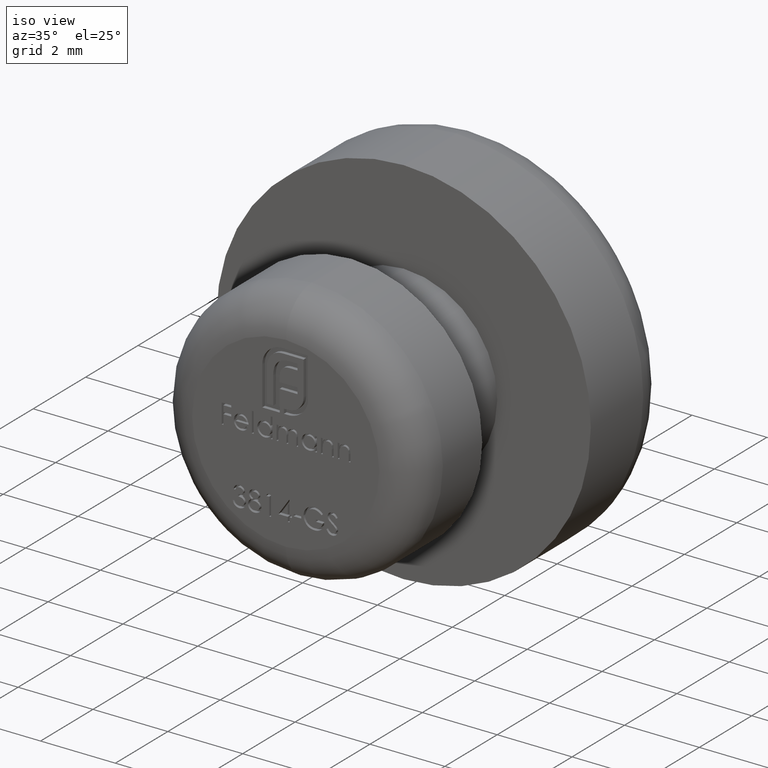
[diagram: clean part render]
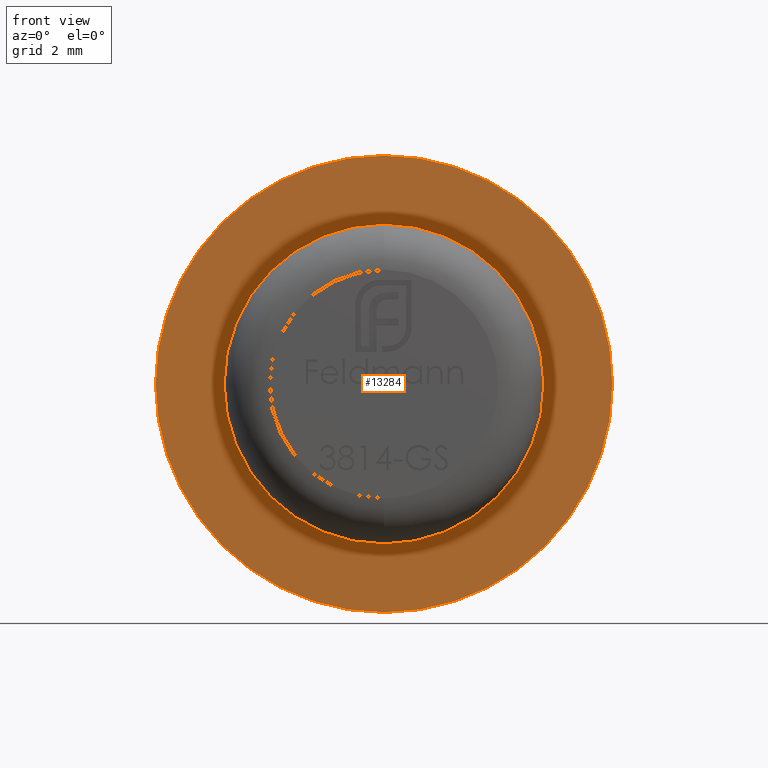
[diagram: tour spotlight — one face highlighted and labeled with its STEP entity id]
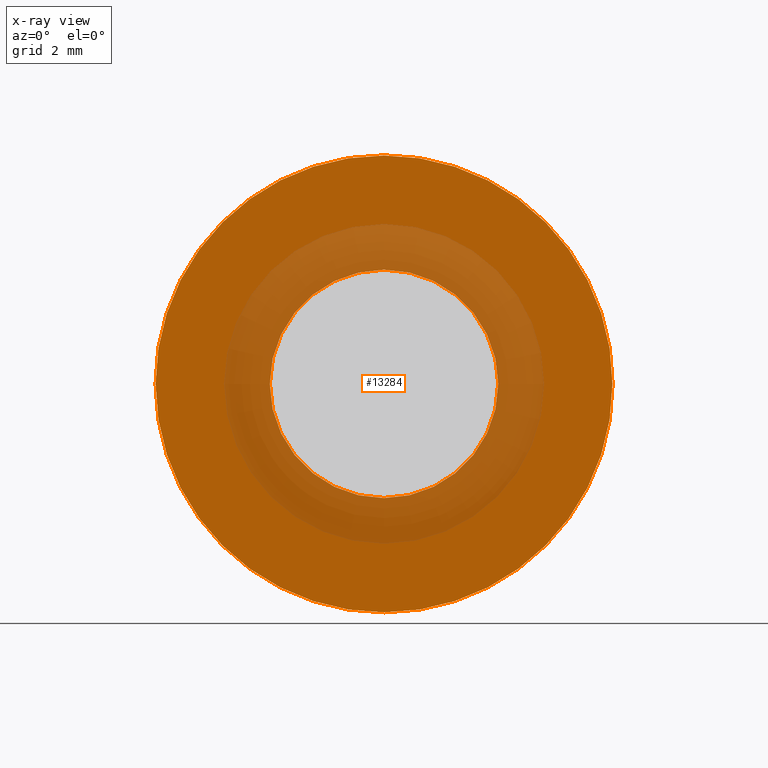
[diagram: x-ray of the same camera — body ghosted, this tour face saturated]
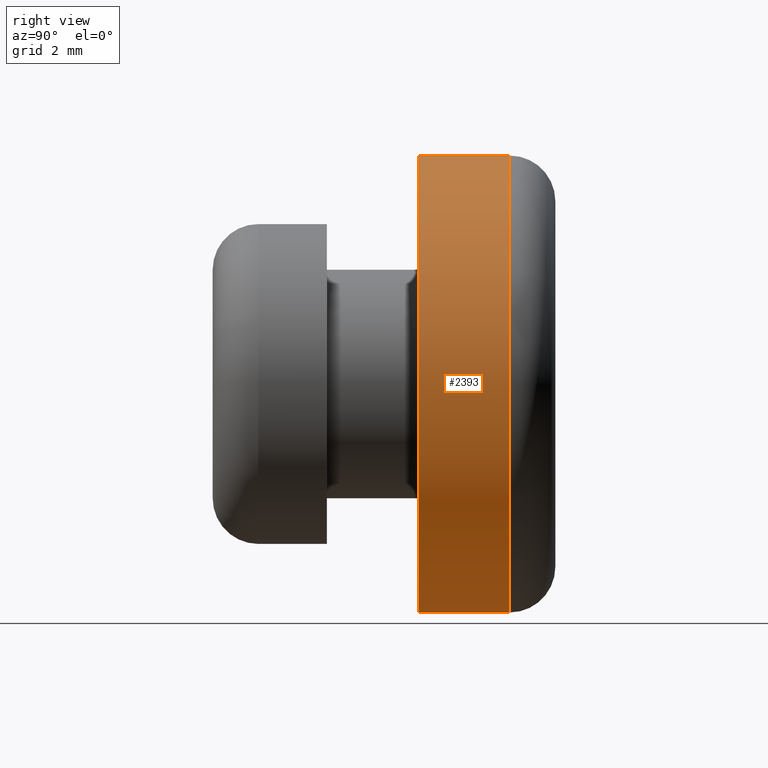
[diagram: tour spotlight — one face highlighted and labeled with its STEP entity id]
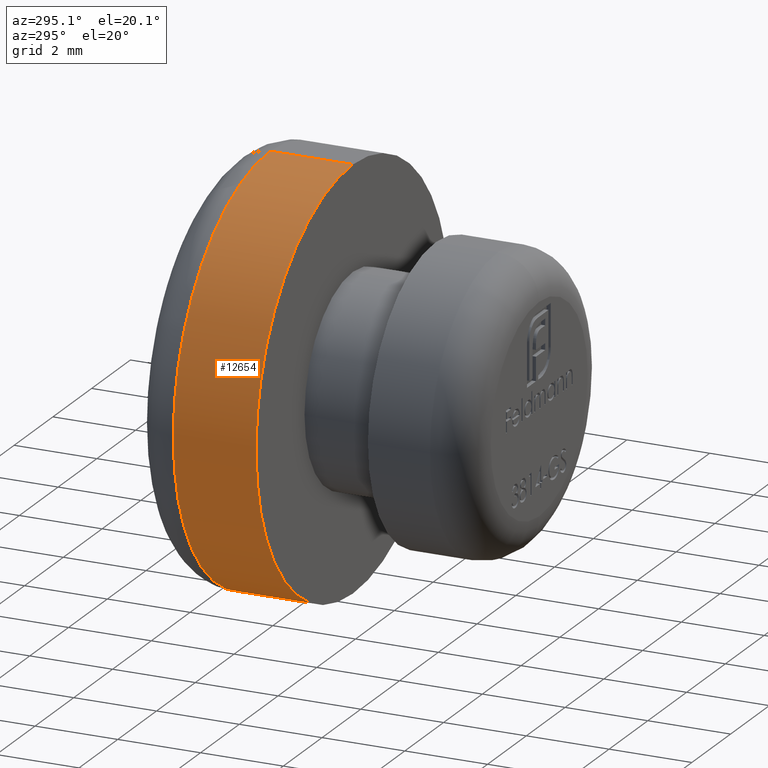
[diagram: tour spotlight — one face highlighted and labeled with its STEP entity id]
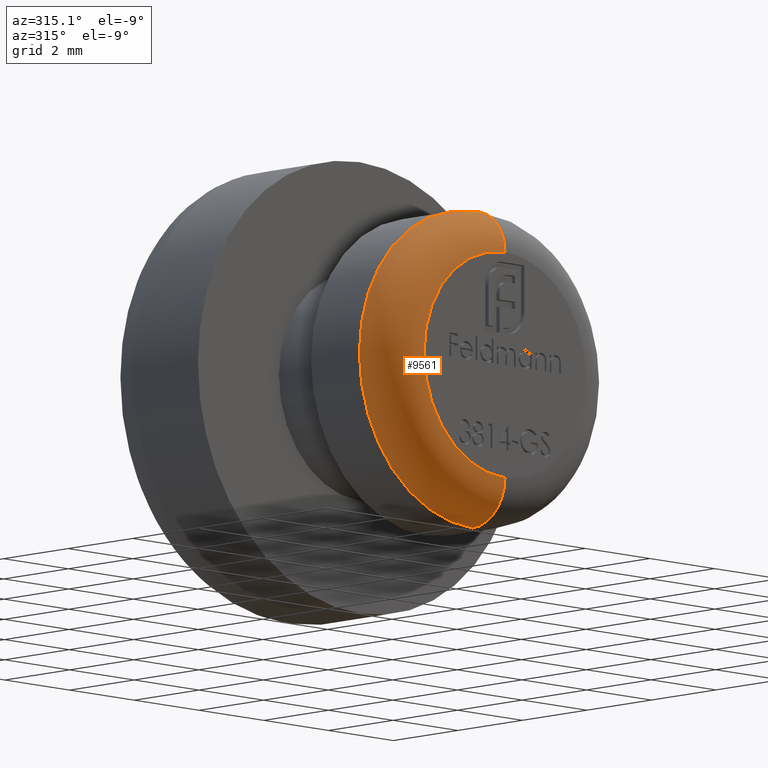
[diagram: tour spotlight — one face highlighted and labeled with its STEP entity id]
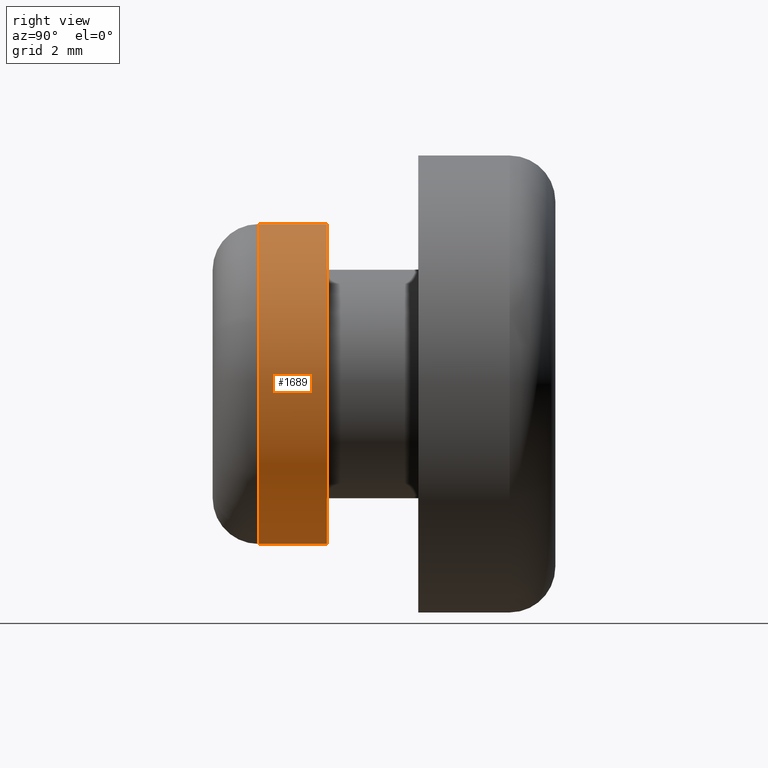
[diagram: tour spotlight — one face highlighted and labeled with its STEP entity id]
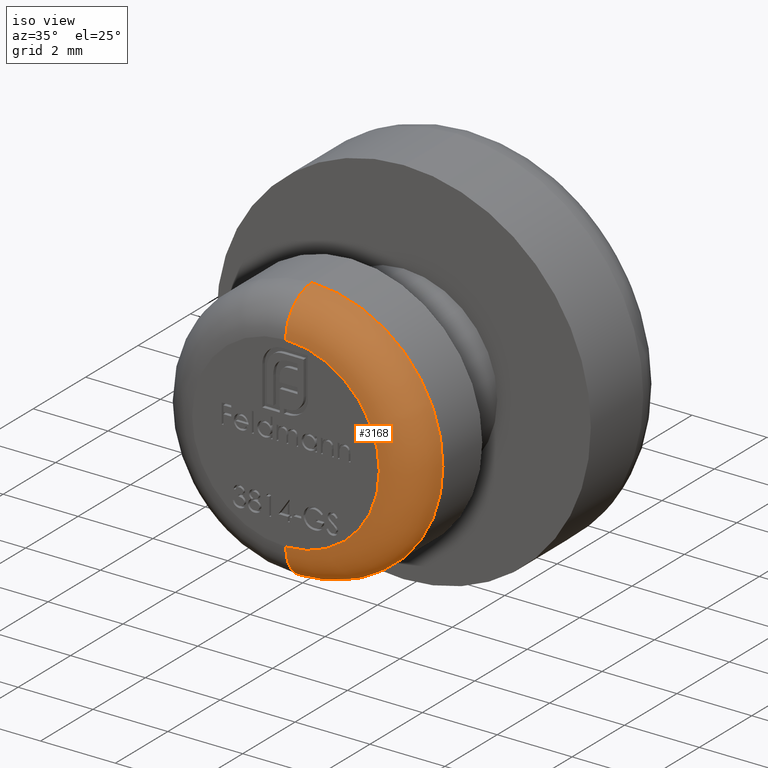
[diagram: tour spotlight — one face highlighted and labeled with its STEP entity id]
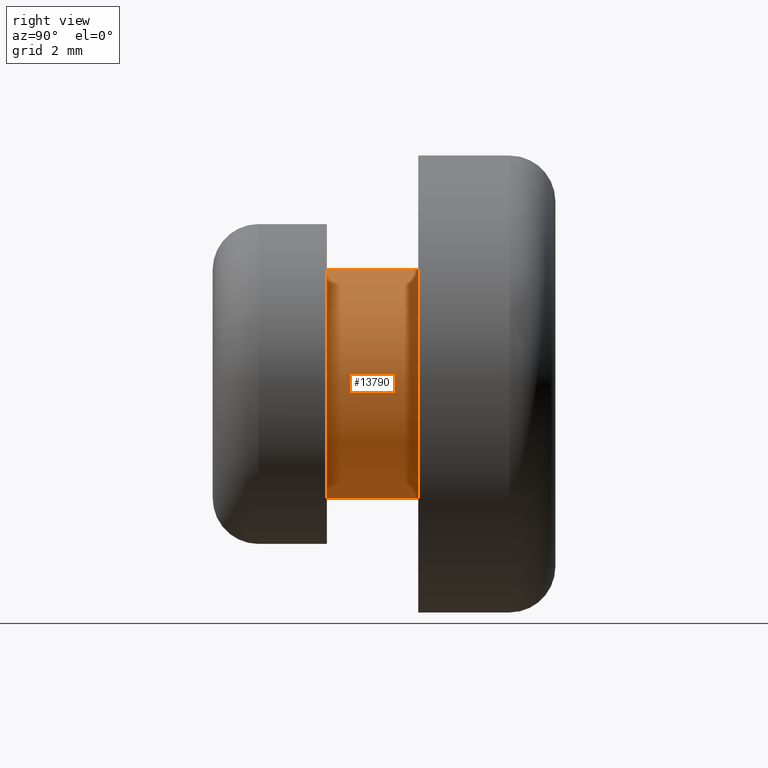
[diagram: tour spotlight — one face highlighted and labeled with its STEP entity id]
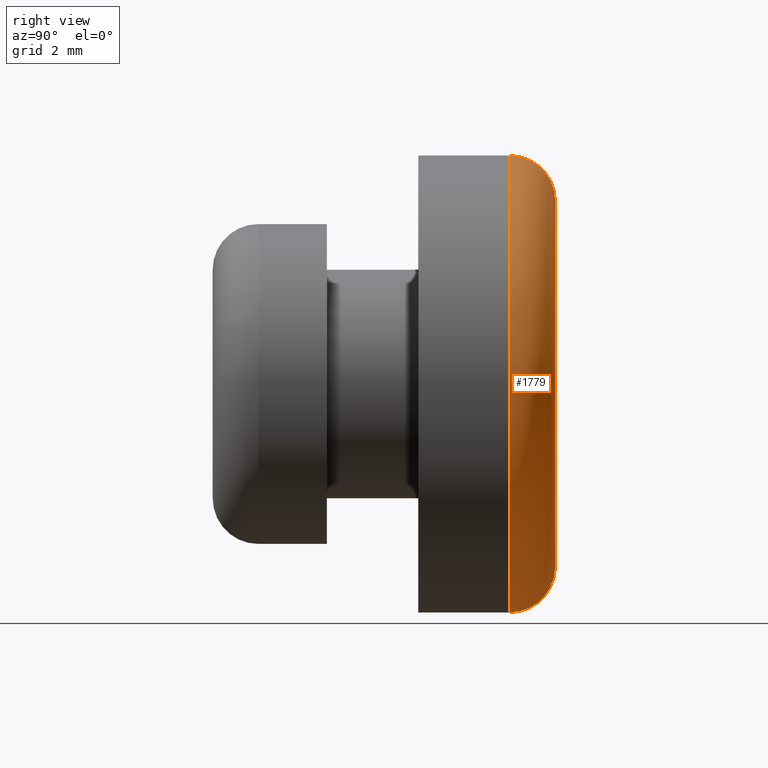
[diagram: tour spotlight — one face highlighted and labeled with its STEP entity id]
A machine part: a face-by-face anatomy tour. The part has 267 B-rep faces; the first image is the clean iso view, then the 8 largest visible faces are spotlighted one at a time (largest first), each with its STEP entity span.

Face 1 — front view, entity #13284. An x-ray twin of the same camera follows (body ghosted, this face saturated) — the face is partly hidden behind the body. In plain terms, the highlighted planar face has unit normal (0, -1, -0).
Definition (entity closure, byte-faithful):
#145 = DIRECTION ( 'NONE',  ( 0.000000000000000000, 0.000000000000000000, -1.000000000000000000 ) ) ;
#190 = CARTESIAN_POINT ( 'NONE',  ( 0.000000000000000000, 3.000000000000000000, 0.000000000000000000 ) ) ;
#377 = CARTESIAN_POINT ( 'NONE',  ( 0.000000000000000000, 2.999999999999999556, 0.000000000000000000 ) ) ;
#1189 = EDGE_CURVE ( 'NONE', #9540, #13520, #4266, .T. ) ;
#1746 = AXIS2_PLACEMENT_3D ( 'NONE', #190, #4421, #145 ) ;
#1913 = DIRECTION ( 'NONE',  ( -0.000000000000000000, -1.000000000000000000, -0.000000000000000000 ) ) ;
#2540 = DIRECTION ( 'NONE',  ( 0.000000000000000000, -1.000000000000000000, -0.000000000000000000 ) ) ;
#2730 = DIRECTION ( 'NONE',  ( 0.000000000000000000, 0.000000000000000000, -1.000000000000000000 ) ) ;
#2949 = AXIS2_PLACEMENT_3D ( 'NONE', #3663, #2540, #6945 ) ;
#3026 = VERTEX_POINT ( 'NONE', #9212 ) ;
#3336 = FACE_OUTER_BOUND ( 'NONE', #7531, .T. ) ;
#3522 = PLANE ( 'NONE',  #2949 ) ;
#3567 = VERTEX_POINT ( 'NONE', #5867 ) ;
#3663 = CARTESIAN_POINT ( 'NONE',  ( 4.999999999999999112, 3.000000000000000000, 0.000000000000000000 ) ) ;
#4266 = CIRCLE ( 'NONE', #1746, 4.999999999999999112 ) ;
#4421 = DIRECTION ( 'NONE',  ( -0.000000000000000000, -1.000000000000000000, -0.000000000000000000 ) ) ;
#4855 = FACE_BOUND ( 'NONE', #9683, .T. ) ;
#5386 = CIRCLE ( 'NONE', #6163, 2.499999999999999556 ) ;
#5419 = ORIENTED_EDGE ( 'NONE', *, *, #1189, .T. ) ;
#5867 = CARTESIAN_POINT ( 'NONE',  ( 0.000000000000000000, 2.999999999999999556, -2.499999999999999556 ) ) ;
#6131 = ORIENTED_EDGE ( 'NONE', *, *, #9410, .F. ) ;
#6163 = AXIS2_PLACEMENT_3D ( 'NONE', #377, #9049, #6758 ) ;
#6344 = CARTESIAN_POINT ( 'NONE',  ( 6.123233995736765296E-16, 3.000000000000000000, 4.999999999999999112 ) ) ;
#6758 = DIRECTION ( 'NONE',  ( 0.000000000000000000, 0.000000000000000000, -1.000000000000000000 ) ) ;
#6945 = DIRECTION ( 'NONE',  ( 0.000000000000000000, 0.000000000000000000, -1.000000000000000000 ) ) ;
#7268 = ORIENTED_EDGE ( 'NONE', *, *, #11289, .F. ) ;
#7531 = EDGE_LOOP ( 'NONE', ( #5419, #12659 ) ) ;
#8144 = DIRECTION ( 'NONE',  ( -0.000000000000000000, -1.000000000000000000, -0.000000000000000000 ) ) ;
#9012 = AXIS2_PLACEMENT_3D ( 'NONE', #9206, #8144, #2730 ) ;
#9049 = DIRECTION ( 'NONE',  ( -0.000000000000000000, -1.000000000000000000, -0.000000000000000000 ) ) ;
#9075 = EDGE_CURVE ( 'NONE', #13520, #9540, #12341, .T. ) ;
#9206 = CARTESIAN_POINT ( 'NONE',  ( 0.000000000000000000, 2.999999999999999556, 0.000000000000000000 ) ) ;
#9212 = CARTESIAN_POINT ( 'NONE',  ( 3.061616997868382648E-16, 2.999999999999999556, 2.499999999999999556 ) ) ;
#9410 = EDGE_CURVE ( 'NONE', #3567, #3026, #9665, .T. ) ;
#9540 = VERTEX_POINT ( 'NONE', #10574 ) ;
#9665 = CIRCLE ( 'NONE', #9012, 2.499999999999999556 ) ;
#9683 = EDGE_LOOP ( 'NONE', ( #6131, #7268 ) ) ;
#10574 = CARTESIAN_POINT ( 'NONE',  ( 0.000000000000000000, 3.000000000000000000, -4.999999999999999112 ) ) ;
#10592 = CARTESIAN_POINT ( 'NONE',  ( 0.000000000000000000, 3.000000000000000000, 0.000000000000000000 ) ) ;
#10634 = DIRECTION ( 'NONE',  ( 0.000000000000000000, 0.000000000000000000, -1.000000000000000000 ) ) ;
#10802 = AXIS2_PLACEMENT_3D ( 'NONE', #10592, #1913, #10634 ) ;
#11289 = EDGE_CURVE ( 'NONE', #3026, #3567, #5386, .T. ) ;
#12341 = CIRCLE ( 'NONE', #10802, 4.999999999999999112 ) ;
#12659 = ORIENTED_EDGE ( 'NONE', *, *, #9075, .T. ) ;
#13284 = ADVANCED_FACE ( 'NONE', ( #3336, #4855 ), #3522, .T. ) ;
#13520 = VERTEX_POINT ( 'NONE', #6344 ) ;

Face 2 — right view, entity #2393. In plain terms, the highlighted cylindrical surface (partial cylindrical patch) has radius 5 mm, axis along (-0, -1, -0).
Definition (entity closure, byte-faithful):
#55 = EDGE_CURVE ( 'NONE', #1102, #13520, #410, .T. ) ;
#145 = DIRECTION ( 'NONE',  ( 0.000000000000000000, 0.000000000000000000, -1.000000000000000000 ) ) ;
#190 = CARTESIAN_POINT ( 'NONE',  ( 0.000000000000000000, 3.000000000000000000, 0.000000000000000000 ) ) ;
#302 = CYLINDRICAL_SURFACE ( 'NONE', #6062, 4.999999999999999112 ) ;
#410 = LINE ( 'NONE', #2690, #2756 ) ;
#533 = AXIS2_PLACEMENT_3D ( 'NONE', #9806, #9852, #3315 ) ;
#1102 = VERTEX_POINT ( 'NONE', #8118 ) ;
#1143 = FACE_OUTER_BOUND ( 'NONE', #6485, .T. ) ;
#1189 = EDGE_CURVE ( 'NONE', #9540, #13520, #4266, .T. ) ;
#1455 = VECTOR ( 'NONE', #10736, 1000.000000000000000 ) ;
#1746 = AXIS2_PLACEMENT_3D ( 'NONE', #190, #4421, #145 ) ;
#2393 = ADVANCED_FACE ( 'NONE', ( #1143 ), #302, .T. ) ;
#2690 = CARTESIAN_POINT ( 'NONE',  ( 6.123233995736765296E-16, 0.000000000000000000, 4.999999999999999112 ) ) ;
#2756 = VECTOR ( 'NONE', #13355, 1000.000000000000000 ) ;
#3137 = ORIENTED_EDGE ( 'NONE', *, *, #55, .T. ) ;
#3315 = DIRECTION ( 'NONE',  ( 0.000000000000000000, 0.000000000000000000, 1.000000000000000000 ) ) ;
#4266 = CIRCLE ( 'NONE', #1746, 4.999999999999999112 ) ;
#4421 = DIRECTION ( 'NONE',  ( -0.000000000000000000, -1.000000000000000000, -0.000000000000000000 ) ) ;
#4622 = EDGE_CURVE ( 'NONE', #11957, #9540, #9037, .T. ) ;
#5341 = CARTESIAN_POINT ( 'NONE',  ( 0.000000000000000000, 0.000000000000000000, -4.999999999999999112 ) ) ;
#5465 = CARTESIAN_POINT ( 'NONE',  ( 0.000000000000000000, 5.000000000000000000, -4.999999999999999112 ) ) ;
#5535 = CIRCLE ( 'NONE', #533, 4.999999999999999112 ) ;
#6062 = AXIS2_PLACEMENT_3D ( 'NONE', #8109, #10359, #7202 ) ;
#6344 = CARTESIAN_POINT ( 'NONE',  ( 6.123233995736765296E-16, 3.000000000000000000, 4.999999999999999112 ) ) ;
#6485 = EDGE_LOOP ( 'NONE', ( #6489, #3137, #13719, #7421 ) ) ;
#6489 = ORIENTED_EDGE ( 'NONE', *, *, #12660, .T. ) ;
#7202 = DIRECTION ( 'NONE',  ( 0.000000000000000000, 0.000000000000000000, -1.000000000000000000 ) ) ;
#7421 = ORIENTED_EDGE ( 'NONE', *, *, #4622, .F. ) ;
#8109 = CARTESIAN_POINT ( 'NONE',  ( 0.000000000000000000, 0.000000000000000000, 0.000000000000000000 ) ) ;
#8118 = CARTESIAN_POINT ( 'NONE',  ( 6.123233995736765296E-16, 5.000000000000000000, 4.999999999999999112 ) ) ;
#9037 = LINE ( 'NONE', #5341, #1455 ) ;
#9540 = VERTEX_POINT ( 'NONE', #10574 ) ;
#9806 = CARTESIAN_POINT ( 'NONE',  ( 0.000000000000000000, 5.000000000000000000, 0.000000000000000000 ) ) ;
#9852 = DIRECTION ( 'NONE',  ( -0.000000000000000000, -1.000000000000000000, -0.000000000000000000 ) ) ;
#10359 = DIRECTION ( 'NONE',  ( -0.000000000000000000, -1.000000000000000000, -0.000000000000000000 ) ) ;
#10574 = CARTESIAN_POINT ( 'NONE',  ( 0.000000000000000000, 3.000000000000000000, -4.999999999999999112 ) ) ;
#10736 = DIRECTION ( 'NONE',  ( -0.000000000000000000, -1.000000000000000000, -0.000000000000000000 ) ) ;
#11957 = VERTEX_POINT ( 'NONE', #5465 ) ;
#12660 = EDGE_CURVE ( 'NONE', #11957, #1102, #5535, .T. ) ;
#13355 = DIRECTION ( 'NONE',  ( -0.000000000000000000, -1.000000000000000000, -0.000000000000000000 ) ) ;
#13520 = VERTEX_POINT ( 'NONE', #6344 ) ;
#13719 = ORIENTED_EDGE ( 'NONE', *, *, #1189, .F. ) ;

Face 3 — auxiliary view, entity #12654. In plain terms, the highlighted cylindrical surface (partial cylindrical patch) has radius 5 mm, axis along (-0, -1, -0).
Definition (entity closure, byte-faithful):
#48 = DIRECTION ( 'NONE',  ( -0.000000000000000000, -1.000000000000000000, -0.000000000000000000 ) ) ;
#55 = EDGE_CURVE ( 'NONE', #1102, #13520, #410, .T. ) ;
#410 = LINE ( 'NONE', #2690, #2756 ) ;
#503 = CYLINDRICAL_SURFACE ( 'NONE', #1524, 4.999999999999999112 ) ;
#1102 = VERTEX_POINT ( 'NONE', #8118 ) ;
#1394 = CARTESIAN_POINT ( 'NONE',  ( 0.000000000000000000, 5.000000000000000000, 0.000000000000000000 ) ) ;
#1455 = VECTOR ( 'NONE', #10736, 1000.000000000000000 ) ;
#1524 = AXIS2_PLACEMENT_3D ( 'NONE', #8604, #48, #11766 ) ;
#1913 = DIRECTION ( 'NONE',  ( -0.000000000000000000, -1.000000000000000000, -0.000000000000000000 ) ) ;
#2304 = EDGE_LOOP ( 'NONE', ( #4529, #7839, #4236, #7809 ) ) ;
#2690 = CARTESIAN_POINT ( 'NONE',  ( 6.123233995736765296E-16, 0.000000000000000000, 4.999999999999999112 ) ) ;
#2756 = VECTOR ( 'NONE', #13355, 1000.000000000000000 ) ;
#3536 = DIRECTION ( 'NONE',  ( 0.000000000000000000, 0.000000000000000000, 1.000000000000000000 ) ) ;
#4236 = ORIENTED_EDGE ( 'NONE', *, *, #4622, .T. ) ;
#4293 = AXIS2_PLACEMENT_3D ( 'NONE', #1394, #10028, #3536 ) ;
#4529 = ORIENTED_EDGE ( 'NONE', *, *, #55, .F. ) ;
#4622 = EDGE_CURVE ( 'NONE', #11957, #9540, #9037, .T. ) ;
#5341 = CARTESIAN_POINT ( 'NONE',  ( 0.000000000000000000, 0.000000000000000000, -4.999999999999999112 ) ) ;
#5465 = CARTESIAN_POINT ( 'NONE',  ( 0.000000000000000000, 5.000000000000000000, -4.999999999999999112 ) ) ;
#6172 = EDGE_CURVE ( 'NONE', #1102, #11957, #8154, .T. ) ;
#6344 = CARTESIAN_POINT ( 'NONE',  ( 6.123233995736765296E-16, 3.000000000000000000, 4.999999999999999112 ) ) ;
#7809 = ORIENTED_EDGE ( 'NONE', *, *, #9075, .F. ) ;
#7839 = ORIENTED_EDGE ( 'NONE', *, *, #6172, .T. ) ;
#8118 = CARTESIAN_POINT ( 'NONE',  ( 6.123233995736765296E-16, 5.000000000000000000, 4.999999999999999112 ) ) ;
#8154 = CIRCLE ( 'NONE', #4293, 4.999999999999999112 ) ;
#8604 = CARTESIAN_POINT ( 'NONE',  ( 0.000000000000000000, 0.000000000000000000, 0.000000000000000000 ) ) ;
#9037 = LINE ( 'NONE', #5341, #1455 ) ;
#9075 = EDGE_CURVE ( 'NONE', #13520, #9540, #12341, .T. ) ;
#9540 = VERTEX_POINT ( 'NONE', #10574 ) ;
#10028 = DIRECTION ( 'NONE',  ( -0.000000000000000000, -1.000000000000000000, -0.000000000000000000 ) ) ;
#10574 = CARTESIAN_POINT ( 'NONE',  ( 0.000000000000000000, 3.000000000000000000, -4.999999999999999112 ) ) ;
#10592 = CARTESIAN_POINT ( 'NONE',  ( 0.000000000000000000, 3.000000000000000000, 0.000000000000000000 ) ) ;
#10634 = DIRECTION ( 'NONE',  ( 0.000000000000000000, 0.000000000000000000, -1.000000000000000000 ) ) ;
#10736 = DIRECTION ( 'NONE',  ( -0.000000000000000000, -1.000000000000000000, -0.000000000000000000 ) ) ;
#10794 = FACE_OUTER_BOUND ( 'NONE', #2304, .T. ) ;
#10802 = AXIS2_PLACEMENT_3D ( 'NONE', #10592, #1913, #10634 ) ;
#11766 = DIRECTION ( 'NONE',  ( 0.000000000000000000, 0.000000000000000000, -1.000000000000000000 ) ) ;
#11957 = VERTEX_POINT ( 'NONE', #5465 ) ;
#12341 = CIRCLE ( 'NONE', #10802, 4.999999999999999112 ) ;
#12654 = ADVANCED_FACE ( 'NONE', ( #10794 ), #503, .T. ) ;
#13355 = DIRECTION ( 'NONE',  ( -0.000000000000000000, -1.000000000000000000, -0.000000000000000000 ) ) ;
#13520 = VERTEX_POINT ( 'NONE', #6344 ) ;

Face 4 — auxiliary view, entity #9561. In plain terms, the highlighted toroidal blend (fillet) surface has major radius 2.5 mm and minor (blend) radius 1 mm.
Definition (entity closure, byte-faithful):
#301 = AXIS2_PLACEMENT_3D ( 'NONE', #13841, #9609, #6370 ) ;
#339 = CIRCLE ( 'NONE', #7280, 3.500000000000000000 ) ;
#1046 = DIRECTION ( 'NONE',  ( 0.000000000000000000, -1.000000000000000000, 0.000000000000000000 ) ) ;
#1685 = VERTEX_POINT ( 'NONE', #10203 ) ;
#1970 = CARTESIAN_POINT ( 'NONE',  ( 0.000000000000000000, -1.500000000000000000, -2.500000000000000000 ) ) ;
#2259 = EDGE_LOOP ( 'NONE', ( #8433, #5076, #9163, #12755 ) ) ;
#2528 = CIRCLE ( 'NONE', #8335, 1.000000000000000000 ) ;
#2696 = EDGE_CURVE ( 'NONE', #10927, #12599, #10740, .T. ) ;
#3763 = CIRCLE ( 'NONE', #11516, 1.000000000000000000 ) ;
#3899 = DIRECTION ( 'NONE',  ( 1.000000000000000000, 0.000000000000000000, -1.224646799147353207E-16 ) ) ;
#4099 = CARTESIAN_POINT ( 'NONE',  ( 0.000000000000000000, -0.5000000000000000000, 0.000000000000000000 ) ) ;
#5076 = ORIENTED_EDGE ( 'NONE', *, *, #11956, .F. ) ;
#5417 = CARTESIAN_POINT ( 'NONE',  ( 0.000000000000000000, -0.5000000000000000000, 0.000000000000000000 ) ) ;
#5695 = AXIS2_PLACEMENT_3D ( 'NONE', #4099, #1046, #6349 ) ;
#6349 = DIRECTION ( 'NONE',  ( 0.000000000000000000, 0.000000000000000000, -1.000000000000000000 ) ) ;
#6370 = DIRECTION ( 'NONE',  ( 0.000000000000000000, 0.000000000000000000, -1.000000000000000000 ) ) ;
#6591 = TOROIDAL_SURFACE ( 'NONE', #5695, 2.500000000000000000, 1.000000000000000000 ) ;
#7083 = CARTESIAN_POINT ( 'NONE',  ( 3.061616997868383141E-16, -0.5000000000000000000, 2.500000000000000000 ) ) ;
#7280 = AXIS2_PLACEMENT_3D ( 'NONE', #5417, #7683, #12971 ) ;
#7683 = DIRECTION ( 'NONE',  ( -0.000000000000000000, 1.000000000000000000, -0.000000000000000000 ) ) ;
#8214 = EDGE_CURVE ( 'NONE', #1685, #12599, #3763, .T. ) ;
#8335 = AXIS2_PLACEMENT_3D ( 'NONE', #7083, #3899, #11492 ) ;
#8433 = ORIENTED_EDGE ( 'NONE', *, *, #11377, .F. ) ;
#8630 = FACE_OUTER_BOUND ( 'NONE', #2259, .T. ) ;
#9163 = ORIENTED_EDGE ( 'NONE', *, *, #8214, .T. ) ;
#9300 = CARTESIAN_POINT ( 'NONE',  ( 3.673940397442059868E-16, -1.500000000000000000, 2.500000000000000000 ) ) ;
#9561 = ADVANCED_FACE ( 'NONE', ( #8630 ), #6591, .T. ) ;
#9609 = DIRECTION ( 'NONE',  ( 0.000000000000000000, -1.000000000000000000, 0.000000000000000000 ) ) ;
#9832 = DIRECTION ( 'NONE',  ( 0.000000000000000000, 0.000000000000000000, 1.000000000000000000 ) ) ;
#10203 = CARTESIAN_POINT ( 'NONE',  ( 0.000000000000000000, -0.5000000000000000000, -3.500000000000000000 ) ) ;
#10740 = CIRCLE ( 'NONE', #301, 2.500000000000000000 ) ;
#10927 = VERTEX_POINT ( 'NONE', #9300 ) ;
#11377 = EDGE_CURVE ( 'NONE', #11747, #10927, #2528, .T. ) ;
#11492 = DIRECTION ( 'NONE',  ( -1.224646799147353207E-16, 0.000000000000000000, -1.000000000000000000 ) ) ;
#11516 = AXIS2_PLACEMENT_3D ( 'NONE', #12878, #11927, #9832 ) ;
#11747 = VERTEX_POINT ( 'NONE', #12229 ) ;
#11927 = DIRECTION ( 'NONE',  ( -1.000000000000000000, -0.000000000000000000, -0.000000000000000000 ) ) ;
#11956 = EDGE_CURVE ( 'NONE', #1685, #11747, #339, .T. ) ;
#12229 = CARTESIAN_POINT ( 'NONE',  ( 4.286263797015736595E-16, -0.5000000000000000000, 3.500000000000000000 ) ) ;
#12599 = VERTEX_POINT ( 'NONE', #1970 ) ;
#12755 = ORIENTED_EDGE ( 'NONE', *, *, #2696, .F. ) ;
#12878 = CARTESIAN_POINT ( 'NONE',  ( 0.000000000000000000, -0.5000000000000000000, -2.500000000000000000 ) ) ;
#12971 = DIRECTION ( 'NONE',  ( 0.000000000000000000, 0.000000000000000000, -1.000000000000000000 ) ) ;
#13841 = CARTESIAN_POINT ( 'NONE',  ( 0.000000000000000000, -1.500000000000000000, 0.000000000000000000 ) ) ;

Face 5 — right view, entity #1689. In plain terms, the highlighted cylindrical surface (partial cylindrical patch) has radius 3.5 mm, axis along (0, -1, 0).
Definition (entity closure, byte-faithful):
#287 = EDGE_CURVE ( 'NONE', #11747, #1685, #11199, .T. ) ;
#383 = AXIS2_PLACEMENT_3D ( 'NONE', #11222, #13296, #8868 ) ;
#603 = ORIENTED_EDGE ( 'NONE', *, *, #2801, .F. ) ;
#1685 = VERTEX_POINT ( 'NONE', #10203 ) ;
#1689 = ADVANCED_FACE ( 'NONE', ( #9076 ), #4351, .T. ) ;
#1702 = CARTESIAN_POINT ( 'NONE',  ( 0.000000000000000000, 1.000000000000000000, 0.000000000000000000 ) ) ;
#1907 = VECTOR ( 'NONE', #8526, 1000.000000000000000 ) ;
#2133 = CARTESIAN_POINT ( 'NONE',  ( 0.000000000000000000, 1.000000000000000000, -3.500000000000000000 ) ) ;
#2192 = EDGE_LOOP ( 'NONE', ( #7317, #2326, #7714, #603 ) ) ;
#2326 = ORIENTED_EDGE ( 'NONE', *, *, #8679, .T. ) ;
#2801 = EDGE_CURVE ( 'NONE', #4043, #1685, #7345, .T. ) ;
#3063 = LINE ( 'NONE', #3187, #1907 ) ;
#3187 = CARTESIAN_POINT ( 'NONE',  ( 4.286263797015736595E-16, 1.000000000000000000, 3.500000000000000000 ) ) ;
#3462 = CARTESIAN_POINT ( 'NONE',  ( 0.000000000000000000, 1.000000000000000000, 0.000000000000000000 ) ) ;
#4043 = VERTEX_POINT ( 'NONE', #2133 ) ;
#4325 = VECTOR ( 'NONE', #4404, 1000.000000000000000 ) ;
#4351 = CYLINDRICAL_SURFACE ( 'NONE', #8697, 3.500000000000000000 ) ;
#4388 = VERTEX_POINT ( 'NONE', #10622 ) ;
#4404 = DIRECTION ( 'NONE',  ( 0.000000000000000000, -1.000000000000000000, 0.000000000000000000 ) ) ;
#5126 = CIRCLE ( 'NONE', #6969, 3.500000000000000000 ) ;
#5563 = CARTESIAN_POINT ( 'NONE',  ( 0.000000000000000000, 1.000000000000000000, -3.500000000000000000 ) ) ;
#6969 = AXIS2_PLACEMENT_3D ( 'NONE', #3462, #10981, #11024 ) ;
#7018 = EDGE_CURVE ( 'NONE', #4043, #4388, #5126, .T. ) ;
#7317 = ORIENTED_EDGE ( 'NONE', *, *, #7018, .T. ) ;
#7345 = LINE ( 'NONE', #5563, #4325 ) ;
#7714 = ORIENTED_EDGE ( 'NONE', *, *, #287, .T. ) ;
#8526 = DIRECTION ( 'NONE',  ( 0.000000000000000000, -1.000000000000000000, 0.000000000000000000 ) ) ;
#8679 = EDGE_CURVE ( 'NONE', #4388, #11747, #3063, .T. ) ;
#8697 = AXIS2_PLACEMENT_3D ( 'NONE', #1702, #13389, #10294 ) ;
#8868 = DIRECTION ( 'NONE',  ( 0.000000000000000000, 0.000000000000000000, -1.000000000000000000 ) ) ;
#9076 = FACE_OUTER_BOUND ( 'NONE', #2192, .T. ) ;
#10203 = CARTESIAN_POINT ( 'NONE',  ( 0.000000000000000000, -0.5000000000000000000, -3.500000000000000000 ) ) ;
#10294 = DIRECTION ( 'NONE',  ( 0.000000000000000000, 0.000000000000000000, -1.000000000000000000 ) ) ;
#10622 = CARTESIAN_POINT ( 'NONE',  ( 4.286263797015736595E-16, 1.000000000000000000, 3.500000000000000000 ) ) ;
#10981 = DIRECTION ( 'NONE',  ( 0.000000000000000000, -1.000000000000000000, 0.000000000000000000 ) ) ;
#11024 = DIRECTION ( 'NONE',  ( 0.000000000000000000, 0.000000000000000000, -1.000000000000000000 ) ) ;
#11199 = CIRCLE ( 'NONE', #383, 3.500000000000000000 ) ;
#11222 = CARTESIAN_POINT ( 'NONE',  ( 0.000000000000000000, -0.5000000000000000000, 0.000000000000000000 ) ) ;
#11747 = VERTEX_POINT ( 'NONE', #12229 ) ;
#12229 = CARTESIAN_POINT ( 'NONE',  ( 4.286263797015736595E-16, -0.5000000000000000000, 3.500000000000000000 ) ) ;
#13296 = DIRECTION ( 'NONE',  ( -0.000000000000000000, 1.000000000000000000, -0.000000000000000000 ) ) ;
#13389 = DIRECTION ( 'NONE',  ( 0.000000000000000000, -1.000000000000000000, 0.000000000000000000 ) ) ;

Face 6 — iso view, entity #3168. In plain terms, the highlighted toroidal blend (fillet) surface has major radius 2.5 mm and minor (blend) radius 1 mm.
Definition (entity closure, byte-faithful):
#149 = ORIENTED_EDGE ( 'NONE', *, *, #287, .F. ) ;
#287 = EDGE_CURVE ( 'NONE', #11747, #1685, #11199, .T. ) ;
#383 = AXIS2_PLACEMENT_3D ( 'NONE', #11222, #13296, #8868 ) ;
#858 = EDGE_CURVE ( 'NONE', #12599, #10927, #9860, .T. ) ;
#1685 = VERTEX_POINT ( 'NONE', #10203 ) ;
#1717 = DIRECTION ( 'NONE',  ( 0.000000000000000000, -1.000000000000000000, 0.000000000000000000 ) ) ;
#1970 = CARTESIAN_POINT ( 'NONE',  ( 0.000000000000000000, -1.500000000000000000, -2.500000000000000000 ) ) ;
#2528 = CIRCLE ( 'NONE', #8335, 1.000000000000000000 ) ;
#3168 = ADVANCED_FACE ( 'NONE', ( #13106 ), #10418, .T. ) ;
#3680 = CARTESIAN_POINT ( 'NONE',  ( 0.000000000000000000, -1.500000000000000000, 0.000000000000000000 ) ) ;
#3763 = CIRCLE ( 'NONE', #11516, 1.000000000000000000 ) ;
#3899 = DIRECTION ( 'NONE',  ( 1.000000000000000000, 0.000000000000000000, -1.224646799147353207E-16 ) ) ;
#5937 = ORIENTED_EDGE ( 'NONE', *, *, #8214, .F. ) ;
#6851 = AXIS2_PLACEMENT_3D ( 'NONE', #3680, #10268, #13312 ) ;
#7083 = CARTESIAN_POINT ( 'NONE',  ( 3.061616997868383141E-16, -0.5000000000000000000, 2.500000000000000000 ) ) ;
#7150 = CARTESIAN_POINT ( 'NONE',  ( 0.000000000000000000, -0.5000000000000000000, 0.000000000000000000 ) ) ;
#8214 = EDGE_CURVE ( 'NONE', #1685, #12599, #3763, .T. ) ;
#8335 = AXIS2_PLACEMENT_3D ( 'NONE', #7083, #3899, #11492 ) ;
#8868 = DIRECTION ( 'NONE',  ( 0.000000000000000000, 0.000000000000000000, -1.000000000000000000 ) ) ;
#9177 = ORIENTED_EDGE ( 'NONE', *, *, #11377, .T. ) ;
#9300 = CARTESIAN_POINT ( 'NONE',  ( 3.673940397442059868E-16, -1.500000000000000000, 2.500000000000000000 ) ) ;
#9832 = DIRECTION ( 'NONE',  ( 0.000000000000000000, 0.000000000000000000, 1.000000000000000000 ) ) ;
#9860 = CIRCLE ( 'NONE', #6851, 2.500000000000000000 ) ;
#10203 = CARTESIAN_POINT ( 'NONE',  ( 0.000000000000000000, -0.5000000000000000000, -3.500000000000000000 ) ) ;
#10268 = DIRECTION ( 'NONE',  ( 0.000000000000000000, -1.000000000000000000, 0.000000000000000000 ) ) ;
#10418 = TOROIDAL_SURFACE ( 'NONE', #13316, 2.500000000000000000, 1.000000000000000000 ) ;
#10927 = VERTEX_POINT ( 'NONE', #9300 ) ;
#11199 = CIRCLE ( 'NONE', #383, 3.500000000000000000 ) ;
#11222 = CARTESIAN_POINT ( 'NONE',  ( 0.000000000000000000, -0.5000000000000000000, 0.000000000000000000 ) ) ;
#11277 = EDGE_LOOP ( 'NONE', ( #149, #9177, #13188, #5937 ) ) ;
#11377 = EDGE_CURVE ( 'NONE', #11747, #10927, #2528, .T. ) ;
#11492 = DIRECTION ( 'NONE',  ( -1.224646799147353207E-16, 0.000000000000000000, -1.000000000000000000 ) ) ;
#11516 = AXIS2_PLACEMENT_3D ( 'NONE', #12878, #11927, #9832 ) ;
#11747 = VERTEX_POINT ( 'NONE', #12229 ) ;
#11927 = DIRECTION ( 'NONE',  ( -1.000000000000000000, -0.000000000000000000, -0.000000000000000000 ) ) ;
#12229 = CARTESIAN_POINT ( 'NONE',  ( 4.286263797015736595E-16, -0.5000000000000000000, 3.500000000000000000 ) ) ;
#12599 = VERTEX_POINT ( 'NONE', #1970 ) ;
#12878 = CARTESIAN_POINT ( 'NONE',  ( 0.000000000000000000, -0.5000000000000000000, -2.500000000000000000 ) ) ;
#13106 = FACE_OUTER_BOUND ( 'NONE', #11277, .T. ) ;
#13188 = ORIENTED_EDGE ( 'NONE', *, *, #858, .F. ) ;
#13296 = DIRECTION ( 'NONE',  ( -0.000000000000000000, 1.000000000000000000, -0.000000000000000000 ) ) ;
#13312 = DIRECTION ( 'NONE',  ( 0.000000000000000000, 0.000000000000000000, -1.000000000000000000 ) ) ;
#13316 = AXIS2_PLACEMENT_3D ( 'NONE', #7150, #1717, #13632 ) ;
#13632 = DIRECTION ( 'NONE',  ( 0.000000000000000000, 0.000000000000000000, -1.000000000000000000 ) ) ;

Face 7 — right view, entity #13790. In plain terms, the highlighted cylindrical surface (partial cylindrical patch) has radius 2.5 mm, axis along (-0, -1, -0).
Definition (entity closure, byte-faithful):
#90 = ORIENTED_EDGE ( 'NONE', *, *, #5259, .F. ) ;
#967 = CIRCLE ( 'NONE', #3725, 2.499999999999999556 ) ;
#1176 = AXIS2_PLACEMENT_3D ( 'NONE', #13417, #10135, #2615 ) ;
#1695 = CARTESIAN_POINT ( 'NONE',  ( 3.061616997868382648E-16, 1.000000000000000000, 2.499999999999999556 ) ) ;
#2024 = DIRECTION ( 'NONE',  ( -0.000000000000000000, -1.000000000000000000, -0.000000000000000000 ) ) ;
#2615 = DIRECTION ( 'NONE',  ( 0.000000000000000000, 0.000000000000000000, -1.000000000000000000 ) ) ;
#2730 = DIRECTION ( 'NONE',  ( 0.000000000000000000, 0.000000000000000000, -1.000000000000000000 ) ) ;
#2798 = EDGE_CURVE ( 'NONE', #3026, #8795, #6666, .T. ) ;
#3026 = VERTEX_POINT ( 'NONE', #9212 ) ;
#3417 = EDGE_CURVE ( 'NONE', #8795, #6069, #967, .T. ) ;
#3567 = VERTEX_POINT ( 'NONE', #5867 ) ;
#3725 = AXIS2_PLACEMENT_3D ( 'NONE', #9778, #8622, #4521 ) ;
#4521 = DIRECTION ( 'NONE',  ( 0.000000000000000000, 0.000000000000000000, -1.000000000000000000 ) ) ;
#5259 = EDGE_CURVE ( 'NONE', #3567, #6069, #11547, .T. ) ;
#5867 = CARTESIAN_POINT ( 'NONE',  ( 0.000000000000000000, 2.999999999999999556, -2.499999999999999556 ) ) ;
#6027 = FACE_OUTER_BOUND ( 'NONE', #9428, .T. ) ;
#6069 = VERTEX_POINT ( 'NONE', #10870 ) ;
#6666 = LINE ( 'NONE', #13030, #12765 ) ;
#7368 = CYLINDRICAL_SURFACE ( 'NONE', #1176, 2.499999999999999556 ) ;
#7625 = ORIENTED_EDGE ( 'NONE', *, *, #9410, .T. ) ;
#8099 = ORIENTED_EDGE ( 'NONE', *, *, #2798, .T. ) ;
#8144 = DIRECTION ( 'NONE',  ( -0.000000000000000000, -1.000000000000000000, -0.000000000000000000 ) ) ;
#8622 = DIRECTION ( 'NONE',  ( -0.000000000000000000, 1.000000000000000000, -0.000000000000000000 ) ) ;
#8795 = VERTEX_POINT ( 'NONE', #1695 ) ;
#9012 = AXIS2_PLACEMENT_3D ( 'NONE', #9206, #8144, #2730 ) ;
#9206 = CARTESIAN_POINT ( 'NONE',  ( 0.000000000000000000, 2.999999999999999556, 0.000000000000000000 ) ) ;
#9212 = CARTESIAN_POINT ( 'NONE',  ( 3.061616997868382648E-16, 2.999999999999999556, 2.499999999999999556 ) ) ;
#9410 = EDGE_CURVE ( 'NONE', #3567, #3026, #9665, .T. ) ;
#9428 = EDGE_LOOP ( 'NONE', ( #7625, #8099, #9822, #90 ) ) ;
#9665 = CIRCLE ( 'NONE', #9012, 2.499999999999999556 ) ;
#9778 = CARTESIAN_POINT ( 'NONE',  ( 0.000000000000000000, 1.000000000000000000, 0.000000000000000000 ) ) ;
#9822 = ORIENTED_EDGE ( 'NONE', *, *, #3417, .T. ) ;
#10135 = DIRECTION ( 'NONE',  ( -0.000000000000000000, -1.000000000000000000, -0.000000000000000000 ) ) ;
#10870 = CARTESIAN_POINT ( 'NONE',  ( 0.000000000000000000, 1.000000000000000000, -2.499999999999999556 ) ) ;
#11547 = LINE ( 'NONE', #11594, #13579 ) ;
#11594 = CARTESIAN_POINT ( 'NONE',  ( 0.000000000000000000, 0.000000000000000000, -2.499999999999999556 ) ) ;
#12039 = DIRECTION ( 'NONE',  ( -0.000000000000000000, -1.000000000000000000, -0.000000000000000000 ) ) ;
#12765 = VECTOR ( 'NONE', #12039, 1000.000000000000000 ) ;
#13030 = CARTESIAN_POINT ( 'NONE',  ( 3.061616997868382648E-16, 0.000000000000000000, 2.499999999999999556 ) ) ;
#13417 = CARTESIAN_POINT ( 'NONE',  ( 0.000000000000000000, 0.000000000000000000, 0.000000000000000000 ) ) ;
#13579 = VECTOR ( 'NONE', #2024, 1000.000000000000000 ) ;
#13790 = ADVANCED_FACE ( 'NONE', ( #6027 ), #7368, .T. ) ;

Face 8 — right view, entity #1779. In plain terms, the highlighted toroidal blend (fillet) surface has major radius 4 mm and minor (blend) radius 1 mm.
Definition (entity closure, byte-faithful):
#533 = AXIS2_PLACEMENT_3D ( 'NONE', #9806, #9852, #3315 ) ;
#665 = DIRECTION ( 'NONE',  ( 0.000000000000000000, 1.000000000000000000, 0.000000000000000000 ) ) ;
#1102 = VERTEX_POINT ( 'NONE', #8118 ) ;
#1376 = ORIENTED_EDGE ( 'NONE', *, *, #8404, .F. ) ;
#1516 = CARTESIAN_POINT ( 'NONE',  ( 0.000000000000000000, 6.000000000000000000, 0.000000000000000000 ) ) ;
#1779 = ADVANCED_FACE ( 'NONE', ( #1827 ), #11929, .T. ) ;
#1827 = FACE_OUTER_BOUND ( 'NONE', #10562, .T. ) ;
#2416 = CIRCLE ( 'NONE', #13608, 3.999999999999999112 ) ;
#2427 = CIRCLE ( 'NONE', #6707, 1.000000000000000000 ) ;
#2677 = DIRECTION ( 'NONE',  ( 0.000000000000000000, 1.000000000000000000, 0.000000000000000000 ) ) ;
#2814 = CARTESIAN_POINT ( 'NONE',  ( 0.000000000000000000, 5.000000000000000000, 0.000000000000000000 ) ) ;
#3006 = ORIENTED_EDGE ( 'NONE', *, *, #7691, .T. ) ;
#3315 = DIRECTION ( 'NONE',  ( 0.000000000000000000, 0.000000000000000000, 1.000000000000000000 ) ) ;
#3845 = CARTESIAN_POINT ( 'NONE',  ( 4.898587196589411843E-16, 5.000000000000000000, -3.999999999999999112 ) ) ;
#3994 = DIRECTION ( 'NONE',  ( 0.000000000000000000, 0.000000000000000000, 1.000000000000000000 ) ) ;
#4014 = AXIS2_PLACEMENT_3D ( 'NONE', #3845, #5023, #5863 ) ;
#4073 = DIRECTION ( 'NONE',  ( 0.000000000000000000, 0.000000000000000000, 1.000000000000000000 ) ) ;
#4226 = CARTESIAN_POINT ( 'NONE',  ( 0.000000000000000000, 6.000000000000000000, 3.999999999999999112 ) ) ;
#4621 = AXIS2_PLACEMENT_3D ( 'NONE', #2814, #665, #3994 ) ;
#5023 = DIRECTION ( 'NONE',  ( 1.000000000000000000, -0.000000000000000000, 1.224646799147353207E-16 ) ) ;
#5138 = ORIENTED_EDGE ( 'NONE', *, *, #5978, .F. ) ;
#5465 = CARTESIAN_POINT ( 'NONE',  ( 0.000000000000000000, 5.000000000000000000, -4.999999999999999112 ) ) ;
#5535 = CIRCLE ( 'NONE', #533, 4.999999999999999112 ) ;
#5863 = DIRECTION ( 'NONE',  ( 1.224646799147353454E-16, 0.000000000000000000, -1.000000000000000000 ) ) ;
#5972 = DIRECTION ( 'NONE',  ( 0.000000000000000000, 0.000000000000000000, 1.000000000000000000 ) ) ;
#5978 = EDGE_CURVE ( 'NONE', #1102, #12610, #2427, .T. ) ;
#6327 = CARTESIAN_POINT ( 'NONE',  ( 0.000000000000000000, 5.000000000000000000, 3.999999999999999112 ) ) ;
#6707 = AXIS2_PLACEMENT_3D ( 'NONE', #6327, #13883, #4073 ) ;
#7691 = EDGE_CURVE ( 'NONE', #11957, #13961, #8158, .T. ) ;
#8118 = CARTESIAN_POINT ( 'NONE',  ( 6.123233995736765296E-16, 5.000000000000000000, 4.999999999999999112 ) ) ;
#8158 = CIRCLE ( 'NONE', #4014, 1.000000000000000000 ) ;
#8404 = EDGE_CURVE ( 'NONE', #12610, #13961, #2416, .T. ) ;
#9806 = CARTESIAN_POINT ( 'NONE',  ( 0.000000000000000000, 5.000000000000000000, 0.000000000000000000 ) ) ;
#9852 = DIRECTION ( 'NONE',  ( -0.000000000000000000, -1.000000000000000000, -0.000000000000000000 ) ) ;
#10562 = EDGE_LOOP ( 'NONE', ( #11757, #3006, #1376, #5138 ) ) ;
#11757 = ORIENTED_EDGE ( 'NONE', *, *, #12660, .F. ) ;
#11929 = TOROIDAL_SURFACE ( 'NONE', #4621, 3.999999999999999112, 1.000000000000000000 ) ;
#11957 = VERTEX_POINT ( 'NONE', #5465 ) ;
#12610 = VERTEX_POINT ( 'NONE', #4226 ) ;
#12660 = EDGE_CURVE ( 'NONE', #11957, #1102, #5535, .T. ) ;
#12841 = CARTESIAN_POINT ( 'NONE',  ( 5.510910596163088569E-16, 6.000000000000000000, -3.999999999999999112 ) ) ;
#13608 = AXIS2_PLACEMENT_3D ( 'NONE', #1516, #2677, #5972 ) ;
#13883 = DIRECTION ( 'NONE',  ( -1.000000000000000000, 0.000000000000000000, 0.000000000000000000 ) ) ;
#13961 = VERTEX_POINT ( 'NONE', #12841 ) ;